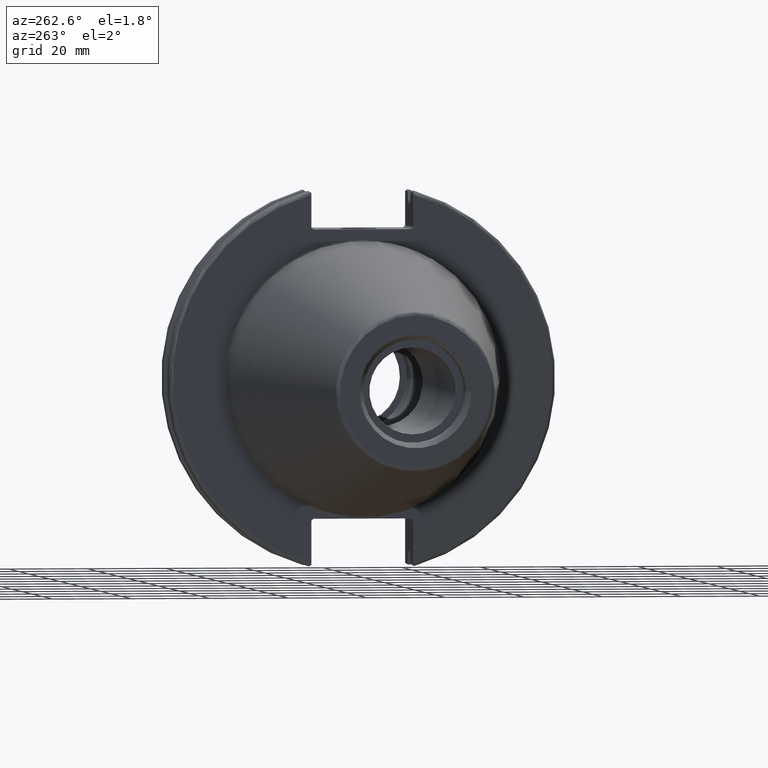
[diagram: clean part render]
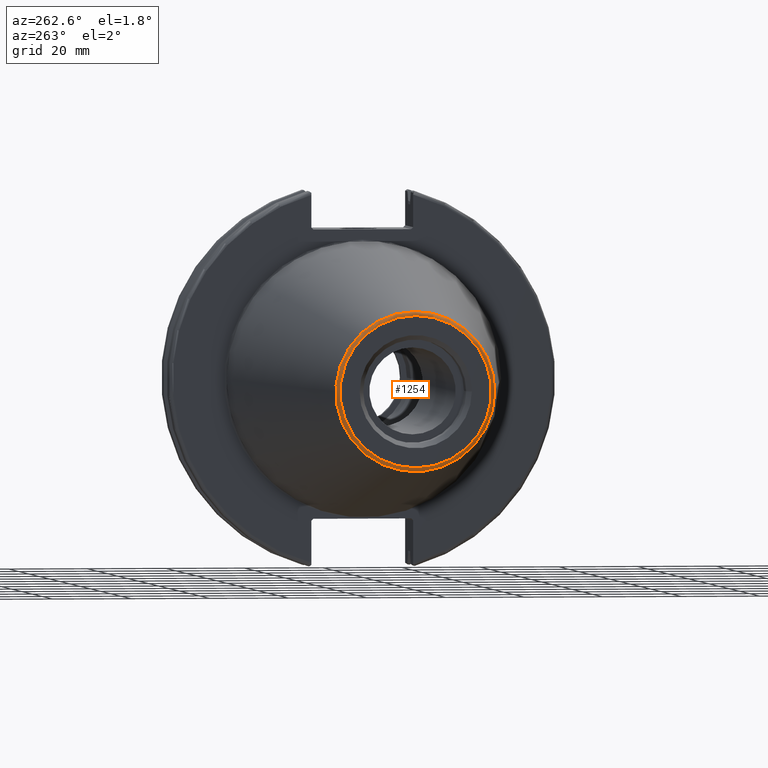
[diagram: same view with one face highlighted and labeled with its STEP entity id]
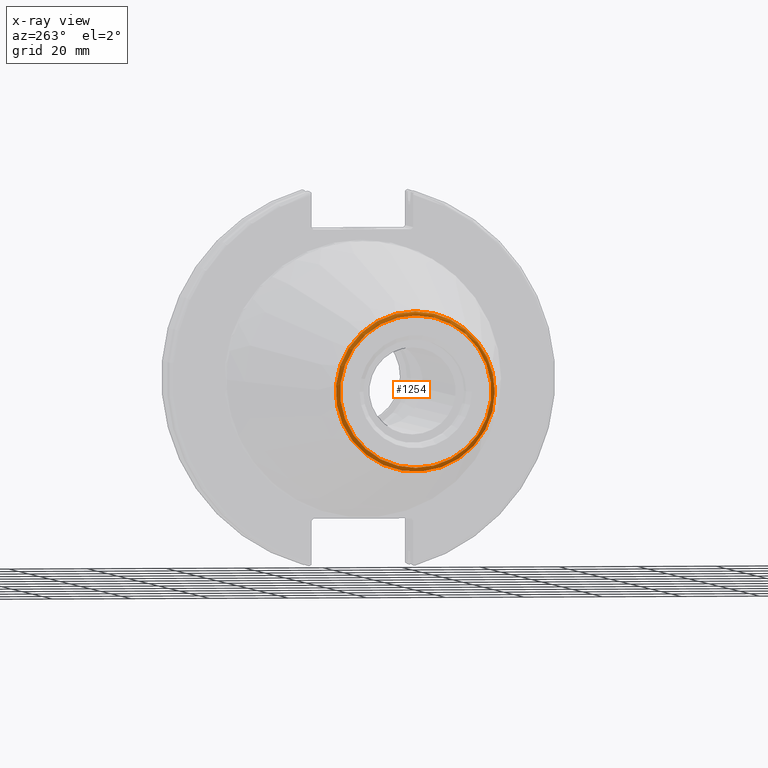
[diagram: x-ray of the same camera — body ghosted, the highlighted face saturated]
A machine part, auxiliary view. The second image highlights one B-rep face of the part: STEP entity #1254.
The next image is the same camera in x-ray: the body ghosted, the highlighted face saturated — about 0% of this face is hidden behind the body in this view.
In plain terms, the highlighted toroidal blend (fillet) surface has major radius 19.2436 mm and minor (blend) radius 1 mm.
Its self-contained STEP definition (entity closure, byte-faithful):
#64=TOROIDAL_SURFACE('',#1418,19.2435889303637,1.);
#154=FACE_OUTER_BOUND('',#234,.T.);
#234=EDGE_LOOP('',(#986,#987,#988,#989,#990));
#499=CIRCLE('',#1419,20.233121911427);
#500=CIRCLE('',#1420,20.233121911427);
#501=CIRCLE('',#1421,1.);
#502=CIRCLE('',#1422,19.2435889303637);
#612=VERTEX_POINT('',#2199);
#613=VERTEX_POINT('',#2200);
#614=VERTEX_POINT('',#2203);
#756=EDGE_CURVE('',#612,#613,#499,.T.);
#757=EDGE_CURVE('',#613,#612,#500,.T.);
#758=EDGE_CURVE('',#612,#614,#501,.T.);
#759=EDGE_CURVE('',#614,#614,#502,.T.);
#986=ORIENTED_EDGE('',*,*,#756,.T.);
#987=ORIENTED_EDGE('',*,*,#757,.T.);
#988=ORIENTED_EDGE('',*,*,#758,.T.);
#989=ORIENTED_EDGE('',*,*,#759,.T.);
#990=ORIENTED_EDGE('',*,*,#758,.F.);
#1254=ADVANCED_FACE('',(#154),#64,.T.);
#1418=AXIS2_PLACEMENT_3D('',#2198,#1656,#1657);
#1419=AXIS2_PLACEMENT_3D('',#2201,#1658,#1659);
#1420=AXIS2_PLACEMENT_3D('',#2202,#1660,#1661);
#1421=AXIS2_PLACEMENT_3D('',#2204,#1662,#1663);
#1422=AXIS2_PLACEMENT_3D('',#2205,#1664,#1665);
#1656=DIRECTION('center_axis',(1.,0.,0.));
#1657=DIRECTION('ref_axis',(0.,0.,-1.));
#1658=DIRECTION('center_axis',(-1.,0.,0.));
#1659=DIRECTION('ref_axis',(0.,-1.,3.06161699786838E-17));
#1660=DIRECTION('center_axis',(-1.,0.,0.));
#1661=DIRECTION('ref_axis',(0.,-1.,3.06161699786838E-17));
#1662=DIRECTION('center_axis',(0.,-1.,-1.22464679914735E-16));
#1663=DIRECTION('ref_axis',(0.,-1.22464679914735E-16,1.));
#1664=DIRECTION('center_axis',(1.,0.,0.));
#1665=DIRECTION('ref_axis',(0.,-1.,1.83697019872103E-16));
#2198=CARTESIAN_POINT('Origin',(-100.6,0.,0.));
#2199=CARTESIAN_POINT('',(-100.744306893072,-2.47784279855872E-15,20.233121911427));
#2200=CARTESIAN_POINT('',(-100.744306893072,-20.233121911427,-2.47784279855872E-15));
#2201=CARTESIAN_POINT('Origin',(-100.744306893072,0.,-3.09730349819841E-15));
#2202=CARTESIAN_POINT('Origin',(-100.744306893072,0.,-3.09730349819841E-15));
#2203=CARTESIAN_POINT('',(-101.6,-2.35665995876774E-15,19.2435889303637));
#2204=CARTESIAN_POINT('Origin',(-100.6,-2.35665995876774E-15,19.2435889303637));
#2205=CARTESIAN_POINT('Origin',(-101.6,0.,0.));